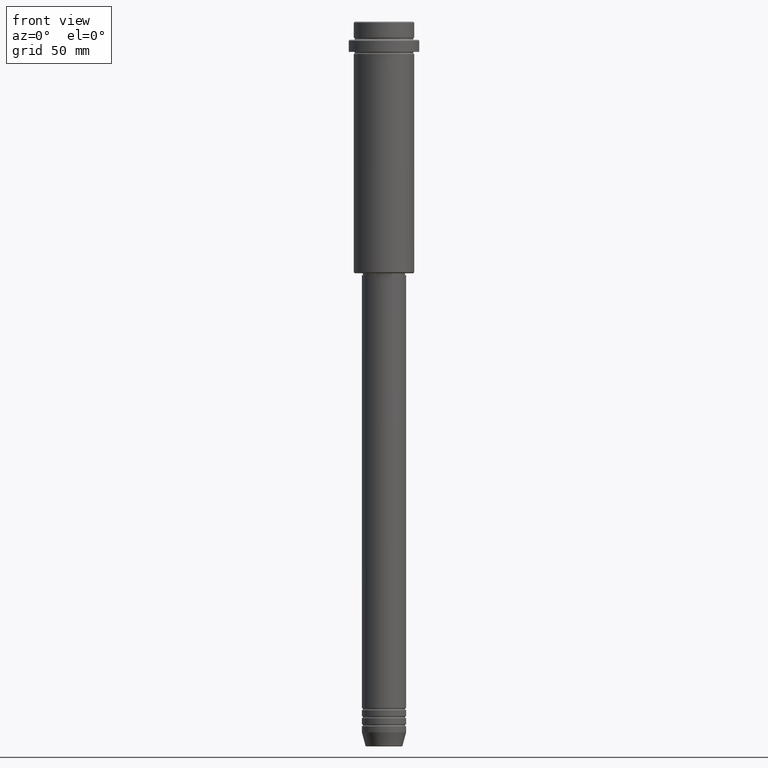
[diagram: clean part render]
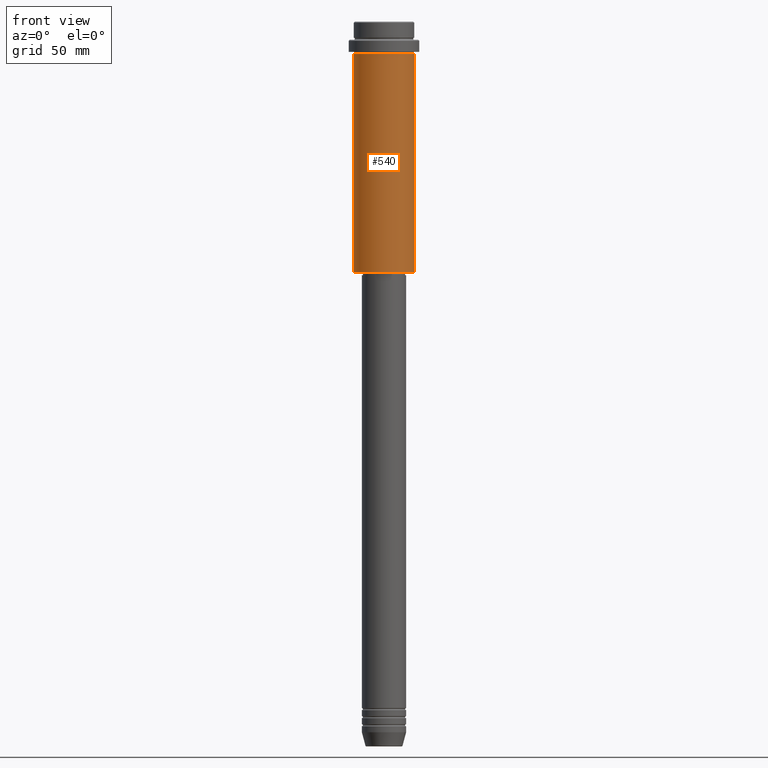
[diagram: same view with one face highlighted and labeled with its STEP entity id]
A machine part, front view. The second image highlights one B-rep face of the part: STEP entity #540.
In plain terms, the highlighted cylindrical surface (edge-blend (fillet) strip) has radius 15 mm, axis along (-0, -0, 1).
Its self-contained STEP definition (entity closure, byte-faithful):
#20 = DIRECTION ( 'NONE',  ( 1.000000000000000000, 0.000000000000000000, 0.000000000000000000 ) ) ;
#33 = CARTESIAN_POINT ( 'NONE',  ( -15.00000000000000355, 1.836970198721029983E-15, -16.00000000000000000 ) ) ;
#107 = CARTESIAN_POINT ( 'NONE',  ( 15.00000000000000000, 0.000000000000000000, -124.4999999999999432 ) ) ;
#150 = CIRCLE ( 'NONE', #1233, 15.00000000000000000 ) ;
#168 = CARTESIAN_POINT ( 'NONE',  ( -15.00000000000000000, 1.836970198721029589E-15, -124.4999999999999432 ) ) ;
#188 = DIRECTION ( 'NONE',  ( -0.000000000000000000, -0.000000000000000000, 1.000000000000000000 ) ) ;
#259 = CARTESIAN_POINT ( 'NONE',  ( 0.000000000000000000, 0.000000000000000000, -16.00000000000000000 ) ) ;
#284 = EDGE_CURVE ( 'NONE', #557, #729, #150, .T. ) ;
#339 = VECTOR ( 'NONE', #1314, 1000.000000000000000 ) ;
#341 = AXIS2_PLACEMENT_3D ( 'NONE', #259, #680, #20 ) ;
#414 = ORIENTED_EDGE ( 'NONE', *, *, #800, .F. ) ;
#452 = ORIENTED_EDGE ( 'NONE', *, *, #632, .T. ) ;
#460 = CIRCLE ( 'NONE', #341, 15.00000000000000178 ) ;
#465 = CYLINDRICAL_SURFACE ( 'NONE', #926, 15.00000000000000000 ) ;
#495 = DIRECTION ( 'NONE',  ( -0.000000000000000000, -0.000000000000000000, 1.000000000000000000 ) ) ;
#508 = DIRECTION ( 'NONE',  ( -1.000000000000000000, 0.000000000000000000, 0.000000000000000000 ) ) ;
#540 = ADVANCED_FACE ( 'NONE', ( #585 ), #465, .T. ) ;
#557 = VERTEX_POINT ( 'NONE', #168 ) ;
#585 = FACE_OUTER_BOUND ( 'NONE', #1251, .T. ) ;
#588 = LINE ( 'NONE', #1039, #1097 ) ;
#632 = EDGE_CURVE ( 'NONE', #729, #825, #706, .T. ) ;
#680 = DIRECTION ( 'NONE',  ( -0.000000000000000000, -0.000000000000000000, 1.000000000000000000 ) ) ;
#689 = CARTESIAN_POINT ( 'NONE',  ( 0.000000000000000000, 0.000000000000000000, 0.000000000000000000 ) ) ;
#706 = LINE ( 'NONE', #973, #339 ) ;
#729 = VERTEX_POINT ( 'NONE', #107 ) ;
#800 = EDGE_CURVE ( 'NONE', #860, #825, #460, .T. ) ;
#817 = DIRECTION ( 'NONE',  ( 1.000000000000000000, 0.000000000000000000, 0.000000000000000000 ) ) ;
#825 = VERTEX_POINT ( 'NONE', #889 ) ;
#860 = VERTEX_POINT ( 'NONE', #33 ) ;
#889 = CARTESIAN_POINT ( 'NONE',  ( 15.00000000000000178, 0.000000000000000000, -16.00000000000000000 ) ) ;
#926 = AXIS2_PLACEMENT_3D ( 'NONE', #689, #495, #817 ) ;
#951 = ORIENTED_EDGE ( 'NONE', *, *, #284, .T. ) ;
#973 = CARTESIAN_POINT ( 'NONE',  ( 15.00000000000000000, 0.000000000000000000, 0.000000000000000000 ) ) ;
#979 = EDGE_CURVE ( 'NONE', #557, #860, #588, .T. ) ;
#1039 = CARTESIAN_POINT ( 'NONE',  ( -15.00000000000000000, 1.836970198721029589E-15, 0.000000000000000000 ) ) ;
#1097 = VECTOR ( 'NONE', #1248, 1000.000000000000000 ) ;
#1103 = ORIENTED_EDGE ( 'NONE', *, *, #979, .F. ) ;
#1157 = CARTESIAN_POINT ( 'NONE',  ( 0.000000000000000000, 0.000000000000000000, -124.4999999999999432 ) ) ;
#1233 = AXIS2_PLACEMENT_3D ( 'NONE', #1157, #188, #508 ) ;
#1248 = DIRECTION ( 'NONE',  ( -0.000000000000000000, -0.000000000000000000, 1.000000000000000000 ) ) ;
#1251 = EDGE_LOOP ( 'NONE', ( #1103, #951, #452, #414 ) ) ;
#1314 = DIRECTION ( 'NONE',  ( -0.000000000000000000, -0.000000000000000000, 1.000000000000000000 ) ) ;